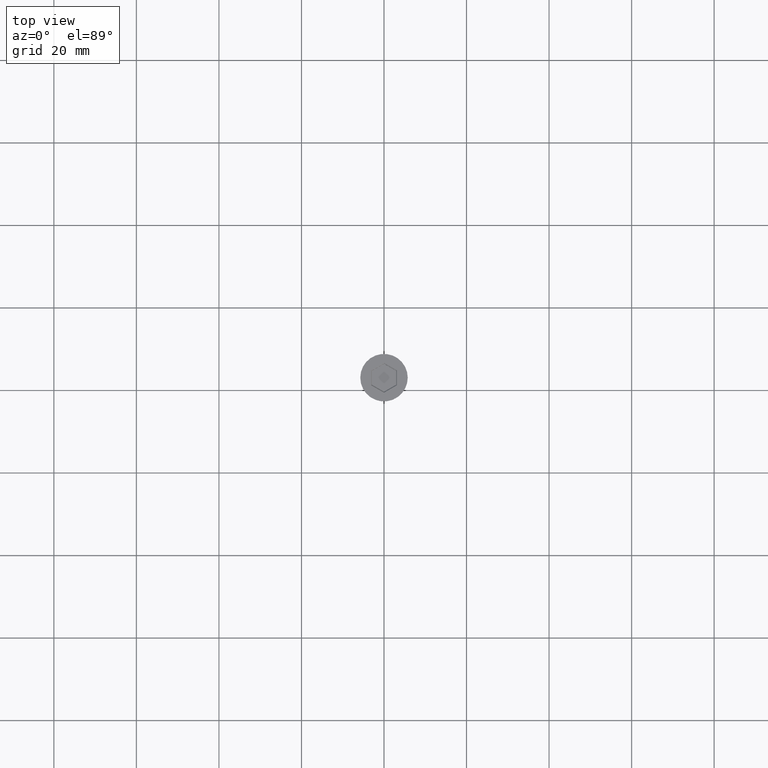
[diagram: clean part render]
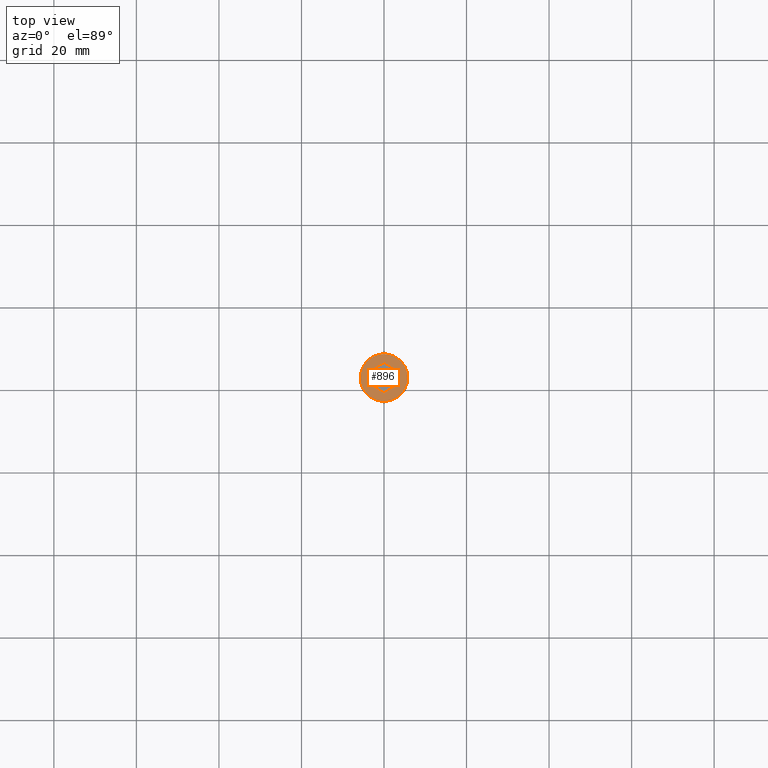
[diagram: same view with one face highlighted and labeled with its STEP entity id]
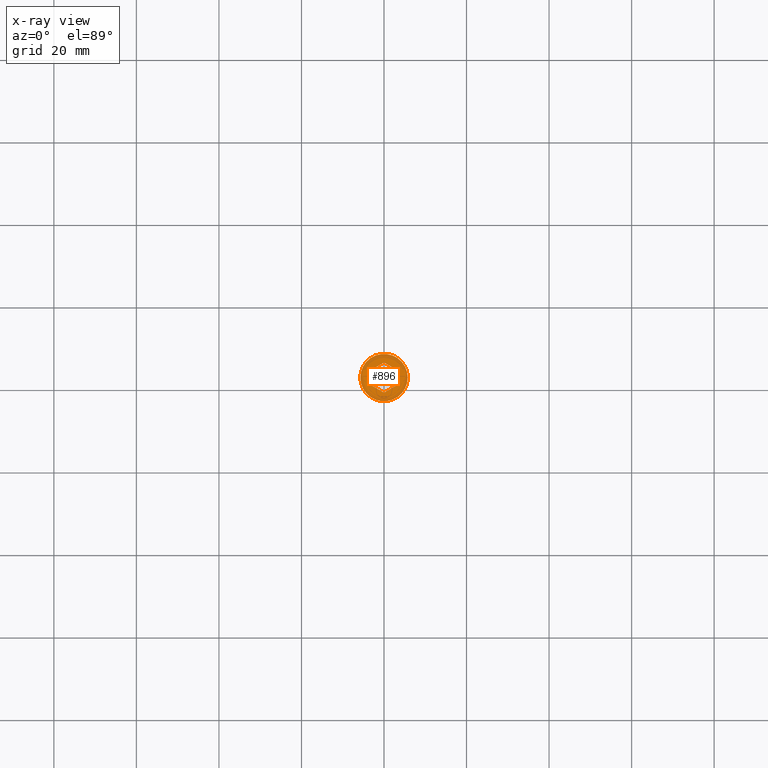
[diagram: x-ray of the same camera — body ghosted, the highlighted face saturated]
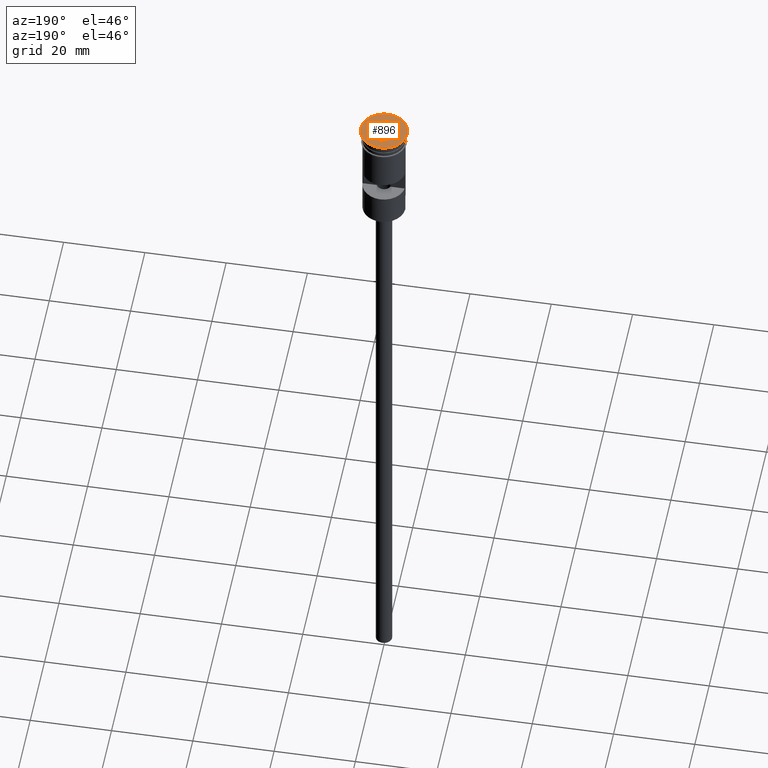
[diagram: same view with one face highlighted and labeled with its STEP entity id]
A machine part, top view. The second image highlights one B-rep face of the part: STEP entity #896.
The next image is the same camera in x-ray: the body ghosted, the highlighted face saturated — about 0% of this face is hidden behind the body in this view.
A second angle (auxiliary view) of the same face is appended — the face is thin or edge-on in the first view.
In plain terms, the highlighted planar face has unit normal (0, -0, 1).
Its self-contained STEP definition (entity closure, byte-faithful):
#27 = VECTOR ( 'NONE', #672, 1000.000000000000000 ) ;
#37 = DIRECTION ( 'NONE',  ( 0.000000000000000000, -0.000000000000000000, 1.000000000000000000 ) ) ;
#73 = VERTEX_POINT ( 'NONE', #973 ) ;
#93 = VERTEX_POINT ( 'NONE', #105 ) ;
#97 = EDGE_CURVE ( 'NONE', #219, #206, #1586, .T. ) ;
#105 = CARTESIAN_POINT ( 'NONE',  ( -3.149999999999978595, 1.818653347947308374, 0.000000000000000000 ) ) ;
#135 = ORIENTED_EDGE ( 'NONE', *, *, #97, .T. ) ;
#172 = CARTESIAN_POINT ( 'NONE',  ( 3.149999999999978151, -1.703183294109396284, 0.000000000000000000 ) ) ;
#206 = VERTEX_POINT ( 'NONE', #1479 ) ;
#212 = CARTESIAN_POINT ( 'NONE',  ( -3.049999999999989608, -1.876388374866265085, 0.000000000000000000 ) ) ;
#219 = VERTEX_POINT ( 'NONE', #538 ) ;
#222 = DIRECTION ( 'NONE',  ( -0.8660254037844385966, 0.5000000000000001110, 0.000000000000000000 ) ) ;
#226 = EDGE_CURVE ( 'NONE', #1376, #93, #1533, .T. ) ;
#229 = CARTESIAN_POINT ( 'NONE',  ( 3.049999999999990052, 1.876388374866264863, 0.000000000000000000 ) ) ;
#289 = DIRECTION ( 'NONE',  ( 0.000000000000000000, 1.000000000000000000, 0.000000000000000000 ) ) ;
#317 = VECTOR ( 'NONE', #474, 1000.000000000000000 ) ;
#320 = DIRECTION ( 'NONE',  ( 1.000000000000000000, 0.000000000000000000, 0.000000000000000000 ) ) ;
#330 = DIRECTION ( 'NONE',  ( 1.000000000000000000, 0.000000000000000000, 0.000000000000000000 ) ) ;
#343 = CARTESIAN_POINT ( 'NONE',  ( 0.09999999999998882005, -3.579571668975661591, 0.000000000000000000 ) ) ;
#354 = VERTEX_POINT ( 'NONE', #519 ) ;
#357 = DIRECTION ( 'NONE',  ( 0.8660254037844385966, 0.5000000000000001110, 0.000000000000000000 ) ) ;
#374 = VECTOR ( 'NONE', #418, 1000.000000000000000 ) ;
#385 = EDGE_CURVE ( 'NONE', #206, #1376, #1339, .T. ) ;
#403 = LINE ( 'NONE', #172, #374 ) ;
#414 = ORIENTED_EDGE ( 'NONE', *, *, #1543, .T. ) ;
#418 = DIRECTION ( 'NONE',  ( -2.546295930062981593E-16, -1.000000000000000000, 0.000000000000000000 ) ) ;
#429 = ORIENTED_EDGE ( 'NONE', *, *, #692, .T. ) ;
#446 = VERTEX_POINT ( 'NONE', #643 ) ;
#452 = CARTESIAN_POINT ( 'NONE',  ( 0.000000000000000000, 0.000000000000000000, 0.000000000000000000 ) ) ;
#458 = CARTESIAN_POINT ( 'NONE',  ( -0.09999999999998934741, 3.579571668975661147, 0.000000000000000000 ) ) ;
#474 = DIRECTION ( 'NONE',  ( -0.8660254037844387076, -0.4999999999999998890, 0.000000000000000000 ) ) ;
#510 = EDGE_LOOP ( 'NONE', ( #414, #1217 ) ) ;
#519 = CARTESIAN_POINT ( 'NONE',  ( -5.750000000000000000, 7.041719095097280880E-16, 0.000000000000000000 ) ) ;
#525 = CARTESIAN_POINT ( 'NONE',  ( -3.095704393061636416E-16, 3.637306695894617192, 0.000000000000000000 ) ) ;
#538 = CARTESIAN_POINT ( 'NONE',  ( 3.149999999999978151, -1.818653347947309484, 0.000000000000000000 ) ) ;
#576 = LINE ( 'NONE', #229, #27 ) ;
#601 = AXIS2_PLACEMENT_3D ( 'NONE', #452, #925, #320 ) ;
#636 = EDGE_LOOP ( 'NONE', ( #655, #1305, #429, #823, #1052, #135 ) ) ;
#643 = CARTESIAN_POINT ( 'NONE',  ( 5.750000000000000000, 0.000000000000000000, 0.000000000000000000 ) ) ;
#648 = FACE_OUTER_BOUND ( 'NONE', #510, .T. ) ;
#655 = ORIENTED_EDGE ( 'NONE', *, *, #385, .T. ) ;
#672 = DIRECTION ( 'NONE',  ( 0.8660254037844387076, -0.4999999999999998890, 0.000000000000000000 ) ) ;
#675 = FACE_BOUND ( 'NONE', #636, .T. ) ;
#678 = VECTOR ( 'NONE', #222, 1000.000000000000114 ) ;
#692 = EDGE_CURVE ( 'NONE', #93, #1382, #840, .T. ) ;
#697 = CARTESIAN_POINT ( 'NONE',  ( 0.000000000000000000, 0.000000000000000000, 0.000000000000000000 ) ) ;
#811 = DIRECTION ( 'NONE',  ( -0.000000000000000000, -0.000000000000000000, 1.000000000000000000 ) ) ;
#823 = ORIENTED_EDGE ( 'NONE', *, *, #1431, .T. ) ;
#840 = LINE ( 'NONE', #458, #1284 ) ;
#888 = EDGE_CURVE ( 'NONE', #73, #219, #403, .T. ) ;
#896 = ADVANCED_FACE ( 'NONE', ( #675, #648 ), #1032, .T. ) ;
#925 = DIRECTION ( 'NONE',  ( -0.000000000000000000, -0.000000000000000000, 1.000000000000000000 ) ) ;
#973 = CARTESIAN_POINT ( 'NONE',  ( 3.149999999999979039, 1.818653347947308596, 0.000000000000000000 ) ) ;
#1032 = PLANE ( 'NONE',  #1287 ) ;
#1046 = CARTESIAN_POINT ( 'NONE',  ( -3.149999999999978595, 1.703183294109395840, 0.000000000000000000 ) ) ;
#1052 = ORIENTED_EDGE ( 'NONE', *, *, #888, .T. ) ;
#1217 = ORIENTED_EDGE ( 'NONE', *, *, #1492, .T. ) ;
#1264 = CIRCLE ( 'NONE', #1476, 5.750000000000000000 ) ;
#1272 = CARTESIAN_POINT ( 'NONE',  ( -3.149999999999978595, -1.818653347947308818, 0.000000000000000000 ) ) ;
#1284 = VECTOR ( 'NONE', #357, 1000.000000000000114 ) ;
#1287 = AXIS2_PLACEMENT_3D ( 'NONE', #1532, #37, #1433 ) ;
#1305 = ORIENTED_EDGE ( 'NONE', *, *, #226, .T. ) ;
#1318 = CIRCLE ( 'NONE', #601, 5.750000000000000000 ) ;
#1339 = LINE ( 'NONE', #212, #678 ) ;
#1376 = VERTEX_POINT ( 'NONE', #1272 ) ;
#1382 = VERTEX_POINT ( 'NONE', #525 ) ;
#1417 = VECTOR ( 'NONE', #289, 1000.000000000000000 ) ;
#1431 = EDGE_CURVE ( 'NONE', #1382, #73, #576, .T. ) ;
#1433 = DIRECTION ( 'NONE',  ( 1.000000000000000000, 0.000000000000000000, 0.000000000000000000 ) ) ;
#1476 = AXIS2_PLACEMENT_3D ( 'NONE', #697, #811, #330 ) ;
#1479 = CARTESIAN_POINT ( 'NONE',  ( -4.546348829811041408E-16, -3.637306695894617636, 0.000000000000000000 ) ) ;
#1492 = EDGE_CURVE ( 'NONE', #354, #446, #1264, .T. ) ;
#1532 = CARTESIAN_POINT ( 'NONE',  ( 0.000000000000000000, 0.000000000000000000, 0.000000000000000000 ) ) ;
#1533 = LINE ( 'NONE', #1046, #1417 ) ;
#1543 = EDGE_CURVE ( 'NONE', #446, #354, #1318, .T. ) ;
#1586 = LINE ( 'NONE', #343, #317 ) ;